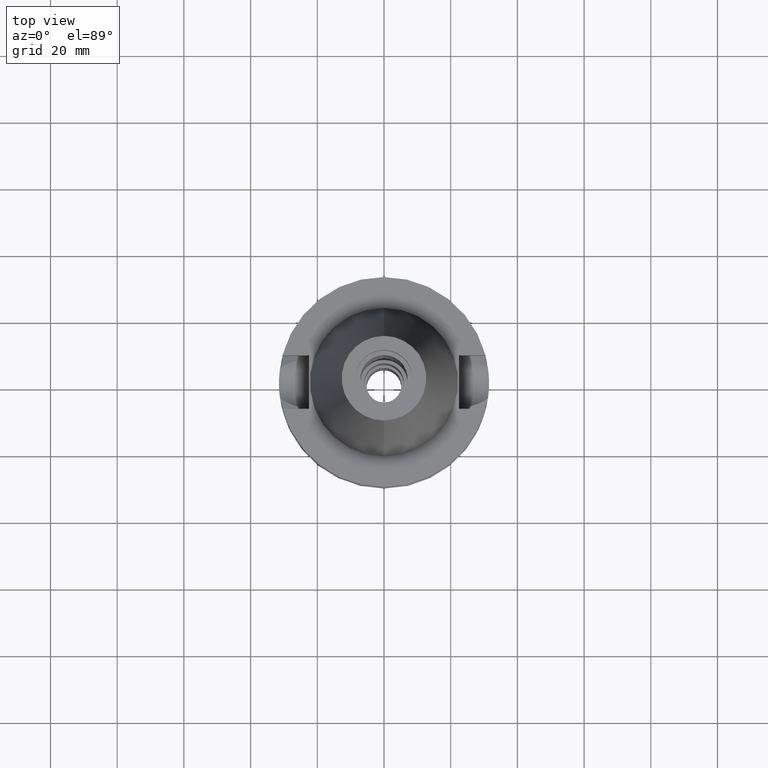
[diagram: clean part render]
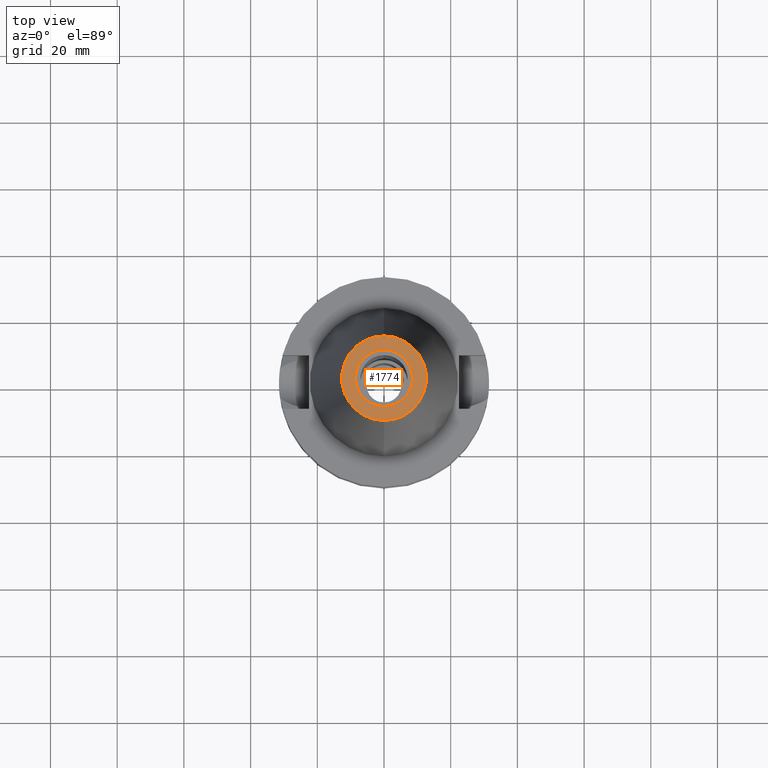
[diagram: same view with one face highlighted and labeled with its STEP entity id]
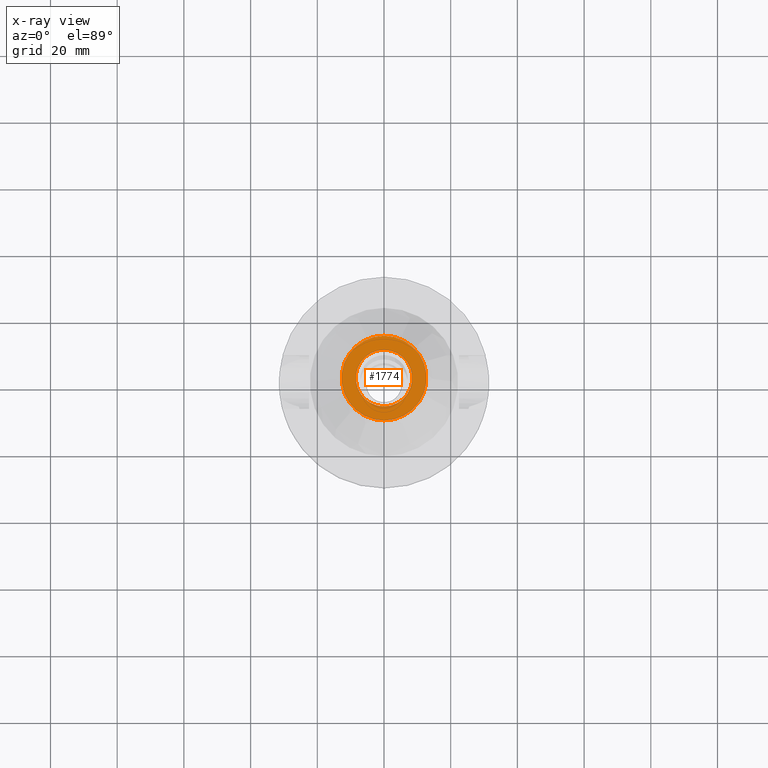
[diagram: x-ray of the same camera — body ghosted, the highlighted face saturated]
A machine part, top view. The second image highlights one B-rep face of the part: STEP entity #1774.
The next image is the same camera in x-ray: the body ghosted, the highlighted face saturated — about 0% of this face is hidden behind the body in this view.
In plain terms, the highlighted planar face has unit normal (0, 0, -1).
Its self-contained STEP definition (entity closure, byte-faithful):
#253 = VERTEX_POINT ( 'NONE', #2915 ) ;
#348 = AXIS2_PLACEMENT_3D ( 'NONE', #1585, #2581, #1496 ) ;
#369 = FACE_BOUND ( 'NONE', #1019, .T. ) ;
#414 = VERTEX_POINT ( 'NONE', #2796 ) ;
#628 = EDGE_CURVE ( 'NONE', #414, #2005, #3463, .T. ) ;
#823 = AXIS2_PLACEMENT_3D ( 'NONE', #2733, #3296, #833 ) ;
#833 = DIRECTION ( 'NONE',  ( 0.0000000000000000000, 1.000000000000000000, 0.0000000000000000000 ) ) ;
#900 = EDGE_CURVE ( 'NONE', #1982, #253, #1939, .T. ) ;
#916 = DIRECTION ( 'NONE',  ( 0.0000000000000000000, -1.000000000000000000, 0.0000000000000000000 ) ) ;
#1016 = EDGE_LOOP ( 'NONE', ( #3313, #2711 ) ) ;
#1019 = EDGE_LOOP ( 'NONE', ( #3393, #3181 ) ) ;
#1041 = AXIS2_PLACEMENT_3D ( 'NONE', #1295, #2408, #3542 ) ;
#1069 = EDGE_CURVE ( 'NONE', #2005, #414, #3643, .T. ) ;
#1190 = FACE_OUTER_BOUND ( 'NONE', #1016, .T. ) ;
#1295 = CARTESIAN_POINT ( 'NONE',  ( 0.0000000000000000000, 1.625106302469000024E-14, 65.40000000000000568 ) ) ;
#1472 = AXIS2_PLACEMENT_3D ( 'NONE', #3371, #2883, #916 ) ;
#1496 = DIRECTION ( 'NONE',  ( 0.0000000000000000000, -1.000000000000000000, 0.0000000000000000000 ) ) ;
#1585 = CARTESIAN_POINT ( 'NONE',  ( 0.0000000000000000000, 2.143989151267000102E-14, 65.40000000000000568 ) ) ;
#1774 = ADVANCED_FACE ( 'NONE', ( #1190, #369 ), #3438, .F. ) ;
#1911 = CARTESIAN_POINT ( 'NONE',  ( 0.0000000000000000000, 12.68766899429999917, 65.40000000000000568 ) ) ;
#1939 = CIRCLE ( 'NONE', #348, 8.500000000000000000 ) ;
#1982 = VERTEX_POINT ( 'NONE', #3026 ) ;
#2005 = VERTEX_POINT ( 'NONE', #1911 ) ;
#2069 = CARTESIAN_POINT ( 'NONE',  ( 0.0000000000000000000, 2.143989151267000102E-14, 65.40000000000000568 ) ) ;
#2408 = DIRECTION ( 'NONE',  ( 0.0000000000000000000, 0.0000000000000000000, -1.000000000000000000 ) ) ;
#2581 = DIRECTION ( 'NONE',  ( 0.0000000000000000000, 0.0000000000000000000, 1.000000000000000000 ) ) ;
#2711 = ORIENTED_EDGE ( 'NONE', *, *, #628, .F. ) ;
#2733 = CARTESIAN_POINT ( 'NONE',  ( 0.0000000000000000000, 1.625106302469000024E-14, 65.40000000000000568 ) ) ;
#2796 = CARTESIAN_POINT ( 'NONE',  ( 0.0000000000000000000, -12.68766899429999917, 65.40000000000000568 ) ) ;
#2883 = DIRECTION ( 'NONE',  ( 0.0000000000000000000, 0.0000000000000000000, -1.000000000000000000 ) ) ;
#2915 = CARTESIAN_POINT ( 'NONE',  ( 0.0000000000000000000, 8.500000000000000000, 65.40000000000000568 ) ) ;
#3026 = CARTESIAN_POINT ( 'NONE',  ( 0.0000000000000000000, -8.500000000000000000, 65.40000000000000568 ) ) ;
#3181 = ORIENTED_EDGE ( 'NONE', *, *, #900, .F. ) ;
#3211 = DIRECTION ( 'NONE',  ( 0.0000000000000000000, 0.0000000000000000000, 1.000000000000000000 ) ) ;
#3296 = DIRECTION ( 'NONE',  ( 0.0000000000000000000, 0.0000000000000000000, -1.000000000000000000 ) ) ;
#3300 = CIRCLE ( 'NONE', #3536, 8.500000000000000000 ) ;
#3313 = ORIENTED_EDGE ( 'NONE', *, *, #1069, .F. ) ;
#3371 = CARTESIAN_POINT ( 'NONE',  ( 0.0000000000000000000, 2.025565805790000122E-14, 65.40000000000000568 ) ) ;
#3393 = ORIENTED_EDGE ( 'NONE', *, *, #3415, .F. ) ;
#3415 = EDGE_CURVE ( 'NONE', #253, #1982, #3300, .T. ) ;
#3438 = PLANE ( 'NONE',  #1472 ) ;
#3463 = CIRCLE ( 'NONE', #1041, 12.68766899429999917 ) ;
#3493 = DIRECTION ( 'NONE',  ( 0.0000000000000000000, 1.000000000000000000, 0.0000000000000000000 ) ) ;
#3536 = AXIS2_PLACEMENT_3D ( 'NONE', #2069, #3211, #3493 ) ;
#3542 = DIRECTION ( 'NONE',  ( 0.0000000000000000000, -1.000000000000000000, 0.0000000000000000000 ) ) ;
#3643 = CIRCLE ( 'NONE', #823, 12.68766899429999917 ) ;